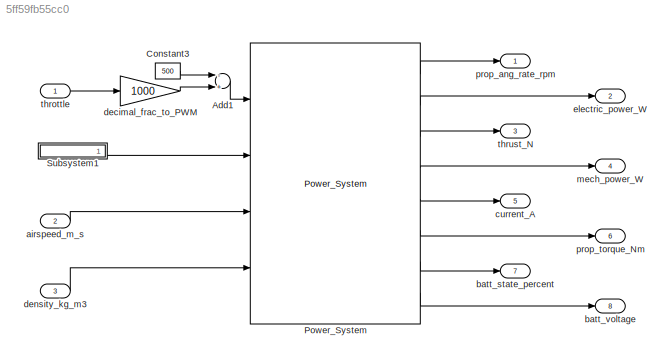
MODEL slx_5ff59fb55cc0
KIND model
CONFIG AbsTol = auto
CONFIG EnableMultiTasking = off
CONFIG FixedStep = simm.dt
CONFIG MaxStep = auto
CONFIG MinStep = auto
CONFIG RelTol = 1e-3
CONFIG SampleTimeConstraint = Unconstrained
CONFIG Solver = ode4
CONFIG SolverName = ode4
CONFIG StartTime = 0.0
CONFIG StopTime = end_time
BLOCK [Sum] Add1
  InputSameDT = off
  Inputs = -+
  OutDataTypeStr = Inherit: Inherit via internal rule
  Ports = [2, 1]
  SaturateOnIntegerOverflow = off
BLOCK [Constant] Constant3
  Value = 500
BLOCK [Reference] Power_System  REF=proplsn_lib/Power_System  (lib defined in slx_400113285e59)
  Ports = [4, 8]
  SourceBlock = proplsn_lib/Power_System
  SourceType = SubSystem
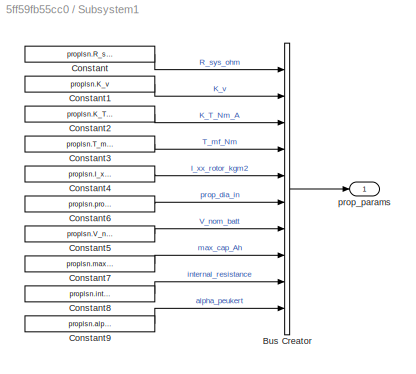
BLOCK [SubSystem] Subsystem1
  Ports = [0, 1]
  RequestExecContextInheritance = off
  Variant = off
BLOCK [BusCreator] Subsystem1/Bus Creator
  DisplayOption = bar
  InheritFromInputs = on
  Inputs = 10
  Ports = [10, 1]
BLOCK [Constant] Subsystem1/Constant
  Value = proplsn.R_sys_ohm
BLOCK [Constant] Subsystem1/Constant1
  Value = proplsn.K_v
BLOCK [Constant] Subsystem1/Constant2
  Value = proplsn.K_T_Nm_A
BLOCK [Constant] Subsystem1/Constant3
  Value = proplsn.T_mf_Nm
BLOCK [Constant] Subsystem1/Constant4
  Value = proplsn.I_xx_rotor_kgm2
BLOCK [Constant] Subsystem1/Constant5
  Value = proplsn.V_nom_batt
BLOCK [Constant] Subsystem1/Constant6
  Value = proplsn.prop_dia_in
BLOCK [Constant] Subsystem1/Constant7
  Value = proplsn.max_cap_Ah
BLOCK [Constant] Subsystem1/Constant8
  Value = proplsn.internal_resistance
BLOCK [Constant] Subsystem1/Constant9
  Value = proplsn.alpha_peukert
BLOCK [Outport] Subsystem1/prop_params
  IconDisplay = Port number
BLOCK [Inport] airspeed_m_s
  IconDisplay = Port number
  Port = 2
BLOCK [Outport] batt_state_percent
  IconDisplay = Port number
  Port = 7
  SampleTime = simm.output_dt
BLOCK [Outport] batt_voltage
  IconDisplay = Port number
  Port = 8
BLOCK [Outport] current_A
  IconDisplay = Port number
  Port = 5
  SampleTime = simm.output_dt
BLOCK [Gain] decimal_frac_to_PWM
  Gain = 1000
  OutDataTypeStr = Inherit: Inherit via internal rule
  ParamDataTypeStr = Inherit: Inherit via internal rule
  SaturateOnIntegerOverflow = off
BLOCK [Inport] density_kg_m3
  IconDisplay = Port number
  Port = 3
BLOCK [Outport] electric_power_W
  IconDisplay = Port number
  Port = 2
  SampleTime = simm.output_dt
BLOCK [Outport] mech_power_W
  IconDisplay = Port number
  Port = 4
  SampleTime = simm.output_dt
BLOCK [Outport] prop_ang_rate_rpm
  IconDisplay = Port number
  SampleTime = simm.output_dt
BLOCK [Outport] prop_torque_Nm
  IconDisplay = Port number
  Port = 6
  SampleTime = simm.output_dt
BLOCK [Inport] throttle
  IconDisplay = Port number
  OutMax = 1
  OutMin = 0
BLOCK [Outport] thrust_N
  IconDisplay = Port number
  Port = 3
  SampleTime = simm.output_dt
LINE Add1:1 -> Power_System:1
LINE Constant3:1 -> Add1:1
LINE Power_System:1 -> prop_ang_rate_rpm:1
LINE Power_System:2 -> electric_power_W:1
LINE Power_System:3 -> thrust_N:1
LINE Power_System:4 -> mech_power_W:1
LINE Power_System:5 -> current_A:1
LINE Power_System:6 -> prop_torque_Nm:1
LINE Power_System:7 -> batt_state_percent:1
LINE Power_System:8 -> batt_voltage:1
LINE Subsystem1/Bus Creator:1 -> Subsystem1/prop_params:1
LINE Subsystem1/Constant1:1 -> Subsystem1/Bus Creator:2
LINE Subsystem1/Constant2:1 -> Subsystem1/Bus Creator:3
LINE Subsystem1/Constant3:1 -> Subsystem1/Bus Creator:4
LINE Subsystem1/Constant4:1 -> Subsystem1/Bus Creator:5
LINE Subsystem1/Constant5:1 -> Subsystem1/Bus Creator:7
LINE Subsystem1/Constant6:1 -> Subsystem1/Bus Creator:6
LINE Subsystem1/Constant7:1 -> Subsystem1/Bus Creator:8
LINE Subsystem1/Constant8:1 -> Subsystem1/Bus Creator:9
LINE Subsystem1/Constant9:1 -> Subsystem1/Bus Creator:10
LINE Subsystem1/Constant:1 -> Subsystem1/Bus Creator:1
LINE Subsystem1:1 -> Power_System:2
LINE airspeed_m_s:1 -> Power_System:3
LINE decimal_frac_to_PWM:1 -> Add1:2
LINE density_kg_m3:1 -> Power_System:4
LINE throttle:1 -> decimal_frac_to_PWM:1
